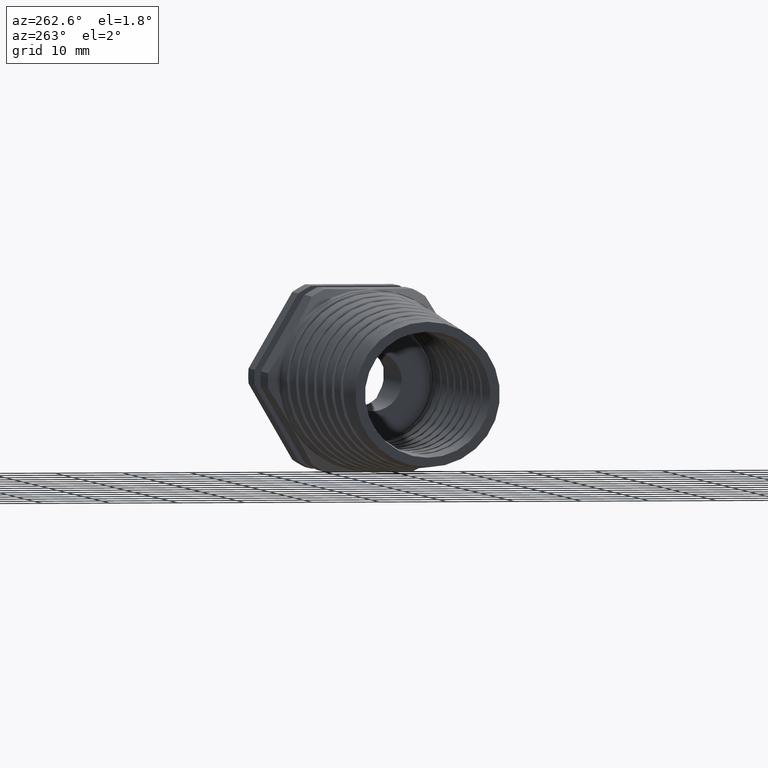
[diagram: clean part render]
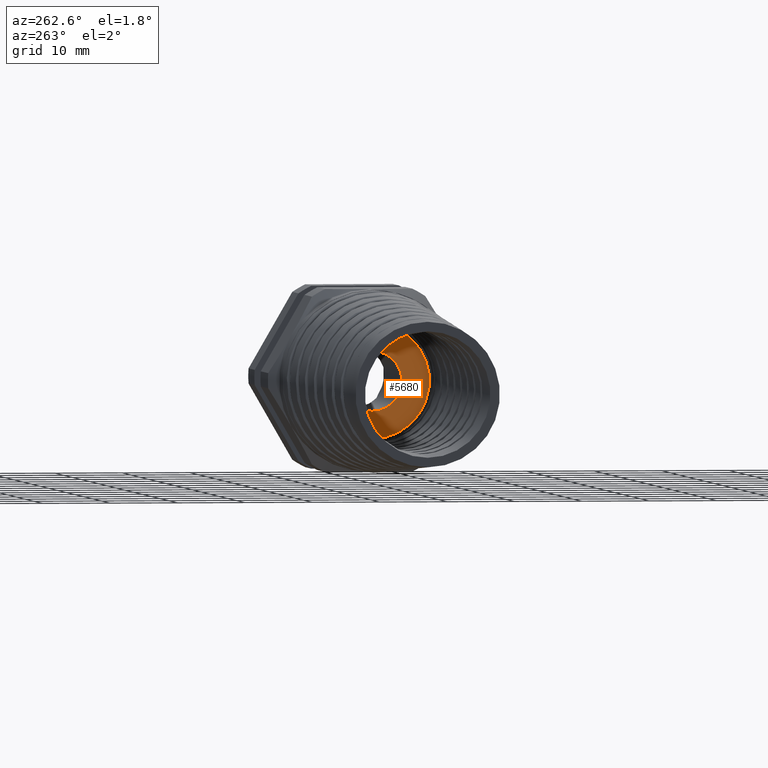
[diagram: same view with one face highlighted and labeled with its STEP entity id]
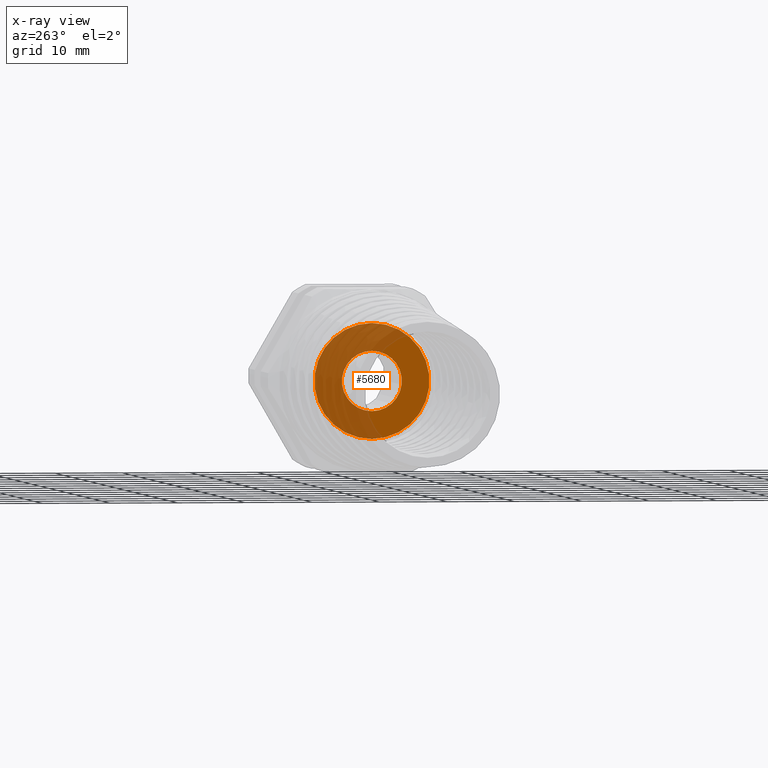
[diagram: x-ray of the same camera — body ghosted, the highlighted face saturated]
A machine part, auxiliary view. The second image highlights one B-rep face of the part: STEP entity #5680.
The next image is the same camera in x-ray: the body ghosted, the highlighted face saturated — about 59% of this face is hidden behind the body in this view.
In plain terms, the highlighted planar face has unit normal (-1, 0, 0).
Its self-contained STEP definition (entity closure, byte-faithful):
#5637 = EDGE_CURVE ( 'NONE', #5912, #5910, #7958, .T. ) ;
#5680 = ADVANCED_FACE ( 'NONE', ( #9482, #9481 ), #9480, .T. ) ;
#5693 = EDGE_LOOP ( 'NONE', ( #5694, #5696 ) ) ;
#5694 = ORIENTED_EDGE ( 'NONE', *, *, #5882, .T. ) ;
#5696 = ORIENTED_EDGE ( 'NONE', *, *, #5904, .T. ) ;
#5697 = EDGE_LOOP ( 'NONE', ( #5699, #5701 ) ) ;
#5699 = ORIENTED_EDGE ( 'NONE', *, *, #5908, .F. ) ;
#5701 = ORIENTED_EDGE ( 'NONE', *, *, #5637, .F. ) ;
#5839 = VERTEX_POINT ( 'NONE', #9724 ) ;
#5882 = EDGE_CURVE ( 'NONE', #5839, #5906, #10051, .T. ) ;
#5904 = EDGE_CURVE ( 'NONE', #5906, #5839, #9960, .T. ) ;
#5906 = VERTEX_POINT ( 'NONE', #9933 ) ;
#5908 = EDGE_CURVE ( 'NONE', #5910, #5912, #9931, .T. ) ;
#5910 = VERTEX_POINT ( 'NONE', #9926 ) ;
#5912 = VERTEX_POINT ( 'NONE', #9924 ) ;
#7954 = DIRECTION ( 'NONE',  ( 0.0000000000000000000, 0.0000000000000000000, -1.000000000000000000 ) ) ;
#7955 = DIRECTION ( 'NONE',  ( 1.000000000000000000, 0.0000000000000000000, 0.0000000000000000000 ) ) ;
#7956 = CARTESIAN_POINT ( 'NONE',  ( -1.339999999999999900, 0.0000000000000000000, 0.0000000000000000000 ) ) ;
#7957 = AXIS2_PLACEMENT_3D ( 'NONE', #7956, #7955, #7954 ) ;
#7958 = CIRCLE ( 'NONE', #7957, 0.3359999999999999700 ) ;
#9476 = DIRECTION ( 'NONE',  ( 0.0000000000000000000, 0.0000000000000000000, 1.000000000000000000 ) ) ;
#9477 = DIRECTION ( 'NONE',  ( -1.000000000000000000, 0.0000000000000000000, 0.0000000000000000000 ) ) ;
#9478 = CARTESIAN_POINT ( 'NONE',  ( -1.339999999999999900, 0.3359999999999999700, 0.0000000000000000000 ) ) ;
#9479 = AXIS2_PLACEMENT_3D ( 'NONE', #9478, #9477, #9476 ) ;
#9480 = PLANE ( 'NONE',  #9479 ) ;
#9481 = FACE_OUTER_BOUND ( 'NONE', #5697, .T. ) ;
#9482 = FACE_BOUND ( 'NONE', #5693, .T. ) ;
#9724 = CARTESIAN_POINT ( 'NONE',  ( -1.339999999999999900, 0.0000000000000000000, -0.1749999999999999900 ) ) ;
#9924 = CARTESIAN_POINT ( 'NONE',  ( -1.339999999999999900, 4.237277925049842000E-017, 0.3359999999999999700 ) ) ;
#9926 = CARTESIAN_POINT ( 'NONE',  ( -1.339999999999999900, 0.0000000000000000000, -0.3359999999999999700 ) ) ;
#9927 = DIRECTION ( 'NONE',  ( 0.0000000000000000000, 0.0000000000000000000, -1.000000000000000000 ) ) ;
#9928 = DIRECTION ( 'NONE',  ( 1.000000000000000000, 0.0000000000000000000, 0.0000000000000000000 ) ) ;
#9929 = CARTESIAN_POINT ( 'NONE',  ( -1.339999999999999900, 0.0000000000000000000, 0.0000000000000000000 ) ) ;
#9930 = AXIS2_PLACEMENT_3D ( 'NONE', #9929, #9928, #9927 ) ;
#9931 = CIRCLE ( 'NONE', #9930, 0.3359999999999999700 ) ;
#9933 = CARTESIAN_POINT ( 'NONE',  ( -1.339999999999999900, 2.143131898507868000E-017, 0.1749999999999999900 ) ) ;
#9938 = DIRECTION ( 'NONE',  ( 0.0000000000000000000, 0.0000000000000000000, -1.000000000000000000 ) ) ;
#9958 = DIRECTION ( 'NONE',  ( 1.000000000000000000, 0.0000000000000000000, 0.0000000000000000000 ) ) ;
#9959 = AXIS2_PLACEMENT_3D ( 'NONE', #9964, #9958, #9938 ) ;
#9960 = CIRCLE ( 'NONE', #9959, 0.1749999999999999900 ) ;
#9964 = CARTESIAN_POINT ( 'NONE',  ( -1.339999999999999900, 0.0000000000000000000, 0.0000000000000000000 ) ) ;
#10047 = DIRECTION ( 'NONE',  ( 0.0000000000000000000, 0.0000000000000000000, -1.000000000000000000 ) ) ;
#10048 = DIRECTION ( 'NONE',  ( 1.000000000000000000, 0.0000000000000000000, 0.0000000000000000000 ) ) ;
#10049 = CARTESIAN_POINT ( 'NONE',  ( -1.339999999999999900, 0.0000000000000000000, 0.0000000000000000000 ) ) ;
#10050 = AXIS2_PLACEMENT_3D ( 'NONE', #10049, #10048, #10047 ) ;
#10051 = CIRCLE ( 'NONE', #10050, 0.1749999999999999900 ) ;